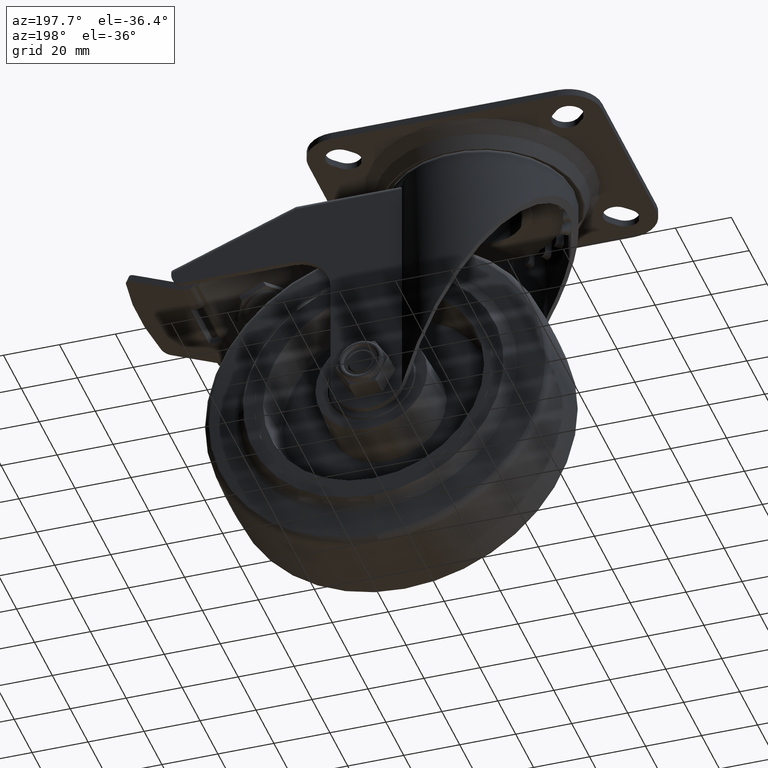
[diagram: clean part render]
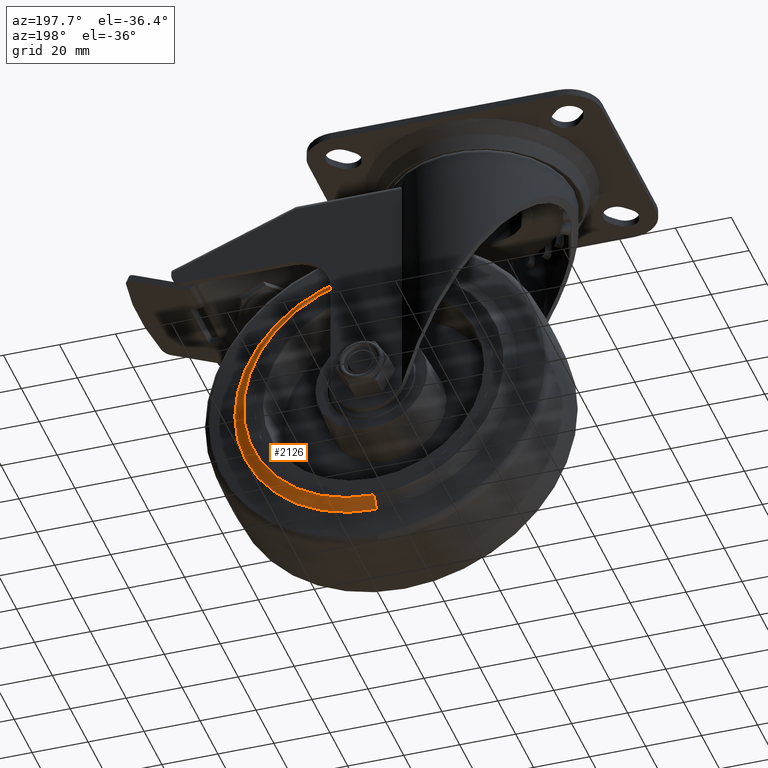
[diagram: same view with one face highlighted and labeled with its STEP entity id]
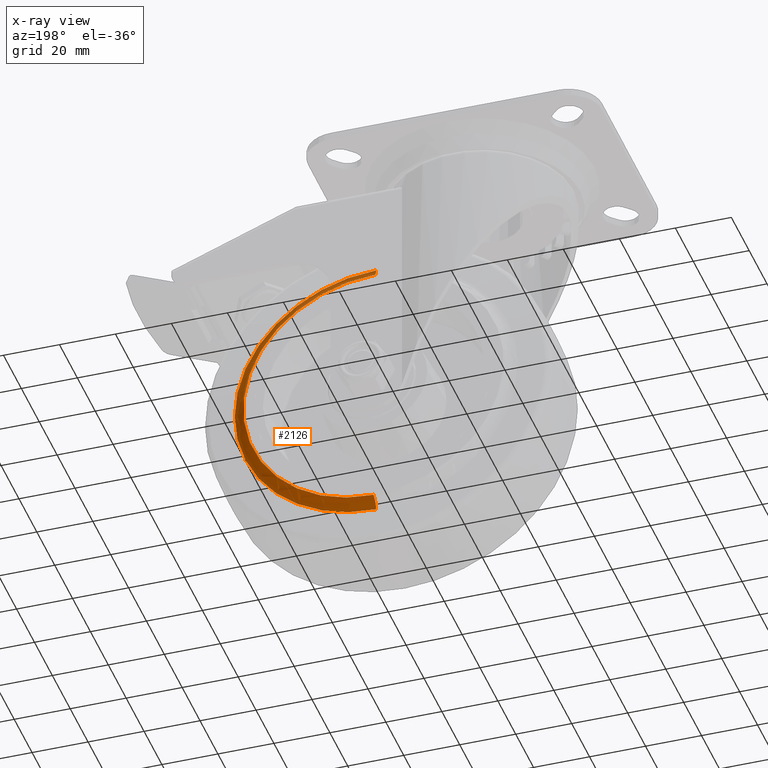
[diagram: x-ray of the same camera — body ghosted, the highlighted face saturated]
A machine part, auxiliary view. The second image highlights one B-rep face of the part: STEP entity #2126.
The next image is the same camera in x-ray: the body ghosted, the highlighted face saturated — about 0% of this face is hidden behind the body in this view.
In plain terms, the highlighted toroidal blend (fillet) surface has major radius 51.0981 mm and minor (blend) radius 5 mm.
Its self-contained STEP definition (entity closure, byte-faithful):
#2126=ADVANCED_FACE('67:3378',(#4049),#4050,.F.);
#4049=FACE_OUTER_BOUND('',#8127,.T.);
#4050=TOROIDAL_SURFACE('',#8128,0.0510980762113533,0.00500000000000001);
#8127=EDGE_LOOP('',(#18173,#18174,#18175,#18176));
#8128=AXIS2_PLACEMENT_3D('',#18177,#18178,#18179);
#18173=ORIENTED_EDGE('',*,*,#26308,.T.);
#18174=ORIENTED_EDGE('',*,*,#26313,.F.);
#18175=ORIENTED_EDGE('',*,*,#26310,.T.);
#18176=ORIENTED_EDGE('',*,*,#26311,.T.);
#18177=CARTESIAN_POINT('',(-7.67660497286492E-17,0.0219641016151377,0.0));
#18178=DIRECTION('',(2.48084430602702E-15,-1.0,-4.01205062912757E-31));
#18179=DIRECTION('',(0.0,4.01205062912757E-31,-1.0));
#26308=EDGE_CURVE('',#30429,#30423,#30430,.T.);
#26310=EDGE_CURVE('',#30425,#30431,#30433,.T.);
#26311=EDGE_CURVE('67:3411',#30431,#30429,#30434,.T.);
#26313=EDGE_CURVE('67:3417',#30425,#30423,#30436,.T.);
#30423=VERTEX_POINT('',#37197);
#30425=VERTEX_POINT('',#37200);
#30429=VERTEX_POINT('',#37205);
#30430=CIRCLE('',#37206,0.00500000000000001);
#30431=VERTEX_POINT('',#37207);
#30433=CIRCLE('',#37209,0.00500000000000001);
#30434=CIRCLE('',#37210,0.0465);
#30436=CIRCLE('',#37212,0.0504999999999995);
#37197=CARTESIAN_POINT('',(-7.11399526203633E-17,0.017,0.0504999999999995));
#37200=CARTESIAN_POINT('',(-7.06353528378893E-17,0.017,-0.0504999999999995));
#37205=CARTESIAN_POINT('',(-8.03084295597969E-17,0.02,0.0465));
#37206=AXIS2_PLACEMENT_3D('',#47494,#47495,#47496);
#37207=CARTESIAN_POINT('',(-7.75880270363114E-17,0.02,-0.0465));
#37209=AXIS2_PLACEMENT_3D('',#47500,#47501,#47502);
#37210=AXIS2_PLACEMENT_3D('',#47503,#47504,#47505);
#37212=AXIS2_PLACEMENT_3D('',#47509,#47510,#47511);
#47494=CARTESIAN_POINT('',(-7.0508340181167E-17,0.0219641016151377,0.0510980762113533));
#47495=DIRECTION('',(-1.0,-2.48084430602702E-15,1.22464679914735E-16));
#47496=DIRECTION('',(1.22464679914735E-16,-9.73892590568642E-32,1.0));
#47500=CARTESIAN_POINT('',(-8.30237592761313E-17,0.0219641016151377,-0.0510980762113533));
#47501=DIRECTION('',(-1.0,-2.48084430602702E-15,1.22464679914735E-16));
#47502=DIRECTION('',(-1.22464679914735E-16,9.73892590568642E-32,-1.0));
#47503=CARTESIAN_POINT('',(-7.18934194202762E-17,0.02,8.02410125825516E-33));
#47504=DIRECTION('',(2.48084430602702E-15,-1.0,-4.01205062912757E-31));
#47505=DIRECTION('',(1.61721177720851E-16,5.8858302432998E-47,1.0));
#47509=CARTESIAN_POINT('',(-6.44508865021953E-17,0.017,6.82048606951691E-33));
#47510=DIRECTION('',(2.48084430602702E-15,-1.0,-4.01205062912757E-31));
#47511=DIRECTION('',(1.61721177720851E-16,5.41962586759294E-47,1.0));